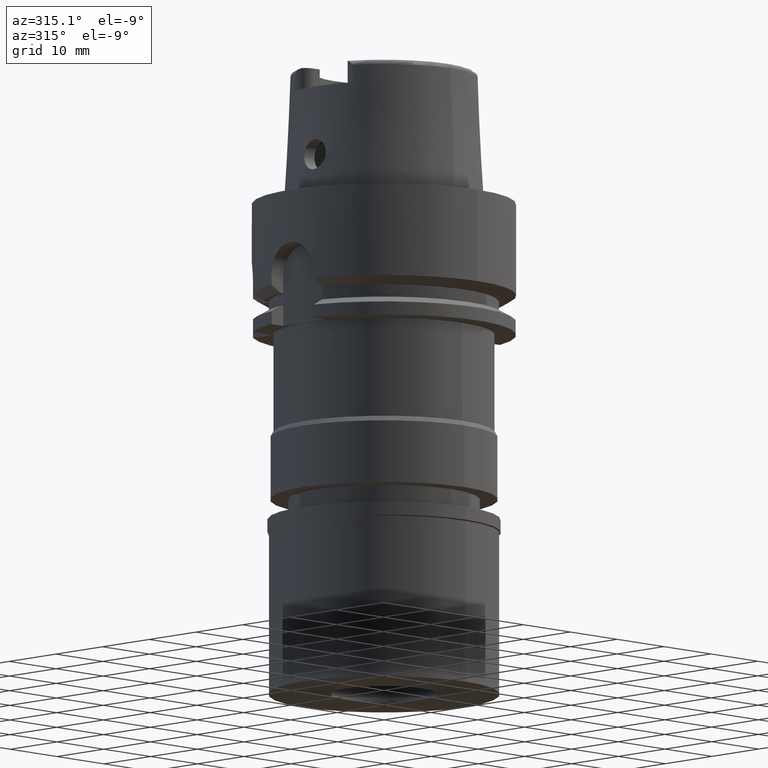
[diagram: clean part render]
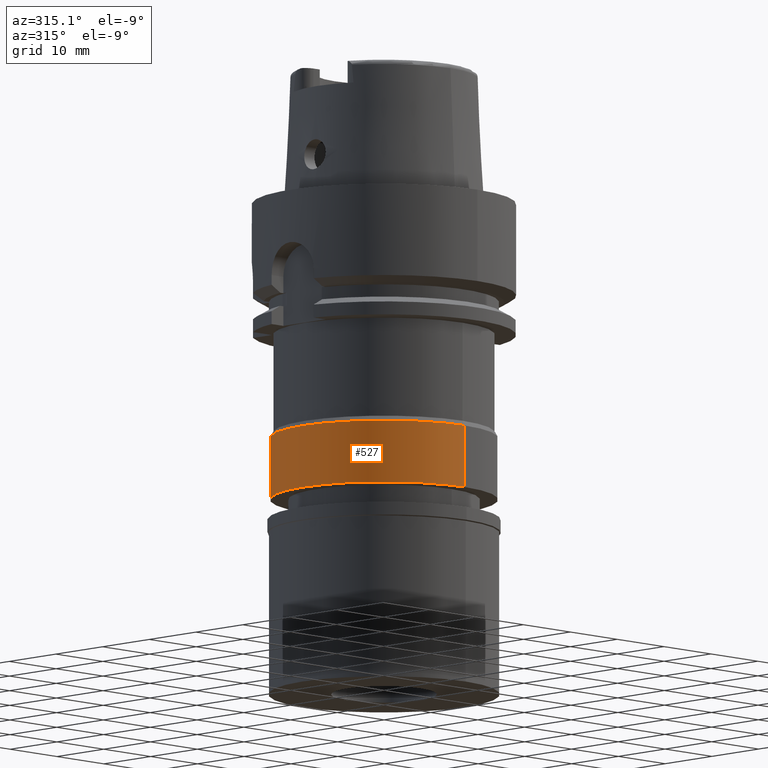
[diagram: same view with one face highlighted and labeled with its STEP entity id]
A machine part, auxiliary view. The second image highlights one B-rep face of the part: STEP entity #527.
In plain terms, the highlighted cylindrical surface (partial cylindrical patch) has radius 17.25 mm, axis along (0, 0, 1).
Its self-contained STEP definition (entity closure, byte-faithful):
#4 = DIRECTION ( 'NONE',  ( 0.0000000000000000000, 0.0000000000000000000, 1.000000000000000000 ) ) ;
#9 = DIRECTION ( 'NONE',  ( 0.0000000000000000000, 0.0000000000000000000, -1.000000000000000000 ) ) ;
#157 = CARTESIAN_POINT ( 'NONE',  ( 0.0000000000000000000, 0.0000000000000000000, -45.19999999999999574 ) ) ;
#391 = EDGE_CURVE ( 'NONE', #3126, #4249, #534, .T. ) ;
#527 = ADVANCED_FACE ( 'NONE', ( #2132 ), #3362, .T. ) ;
#534 = LINE ( 'NONE', #4801, #4095 ) ;
#1057 = DIRECTION ( 'NONE',  ( 0.0000000000000000000, -1.606542789497000026E-13, -1.000000000000000000 ) ) ;
#1098 = VERTEX_POINT ( 'NONE', #1249 ) ;
#1206 = EDGE_LOOP ( 'NONE', ( #4767, #5396, #1256, #3733 ) ) ;
#1232 = DIRECTION ( 'NONE',  ( 0.0000000000000000000, 1.000000000000000000, 0.0000000000000000000 ) ) ;
#1249 = CARTESIAN_POINT ( 'NONE',  ( 0.0000000000000000000, -17.25000000000000000, -35.77942286340999800 ) ) ;
#1256 = ORIENTED_EDGE ( 'NONE', *, *, #1972, .T. ) ;
#1559 = DIRECTION ( 'NONE',  ( 0.0000000000000000000, 1.606542789497000026E-13, -1.000000000000000000 ) ) ;
#1614 = DIRECTION ( 'NONE',  ( 0.0000000000000000000, -1.000000000000000000, 0.0000000000000000000 ) ) ;
#1927 = AXIS2_PLACEMENT_3D ( 'NONE', #157, #4005, #2224 ) ;
#1972 = EDGE_CURVE ( 'NONE', #1098, #3126, #4074, .T. ) ;
#2132 = FACE_OUTER_BOUND ( 'NONE', #1206, .T. ) ;
#2224 = DIRECTION ( 'NONE',  ( 0.0000000000000000000, 1.000000000000000000, 0.0000000000000000000 ) ) ;
#3126 = VERTEX_POINT ( 'NONE', #3256 ) ;
#3251 = CARTESIAN_POINT ( 'NONE',  ( 0.0000000000000000000, -17.25000000000000000, -45.19999999999999574 ) ) ;
#3256 = CARTESIAN_POINT ( 'NONE',  ( 0.0000000000000000000, 17.25000000000000000, -35.77942286340999800 ) ) ;
#3299 = VECTOR ( 'NONE', #1559, 1000.000000000000000 ) ;
#3338 = CARTESIAN_POINT ( 'NONE',  ( 0.0000000000000000000, 0.0000000000000000000, -35.77942286340999800 ) ) ;
#3362 = CYLINDRICAL_SURFACE ( 'NONE', #5165, 17.25000000000000000 ) ;
#3405 = CARTESIAN_POINT ( 'NONE',  ( 0.0000000000000000000, 17.25000000000000000, -45.19999999999999574 ) ) ;
#3733 = ORIENTED_EDGE ( 'NONE', *, *, #391, .T. ) ;
#3742 = EDGE_CURVE ( 'NONE', #1098, #4569, #4889, .T. ) ;
#3747 = CARTESIAN_POINT ( 'NONE',  ( 0.0000000000000000000, 0.0000000000000000000, -68.20000000000000284 ) ) ;
#4005 = DIRECTION ( 'NONE',  ( 0.0000000000000000000, 0.0000000000000000000, 1.000000000000000000 ) ) ;
#4074 = CIRCLE ( 'NONE', #4785, 17.25000000000000000 ) ;
#4095 = VECTOR ( 'NONE', #1057, 1000.000000000000000 ) ;
#4193 = CIRCLE ( 'NONE', #1927, 17.25000000000000000 ) ;
#4249 = VERTEX_POINT ( 'NONE', #3405 ) ;
#4450 = EDGE_CURVE ( 'NONE', #4249, #4569, #4193, .T. ) ;
#4456 = CARTESIAN_POINT ( 'NONE',  ( 0.0000000000000000000, -17.25000000000000000, -35.77942286340999800 ) ) ;
#4569 = VERTEX_POINT ( 'NONE', #3251 ) ;
#4767 = ORIENTED_EDGE ( 'NONE', *, *, #4450, .T. ) ;
#4785 = AXIS2_PLACEMENT_3D ( 'NONE', #3338, #9, #1614 ) ;
#4801 = CARTESIAN_POINT ( 'NONE',  ( 0.0000000000000000000, 17.25000000000000000, -35.77942286340999800 ) ) ;
#4889 = LINE ( 'NONE', #4456, #3299 ) ;
#5165 = AXIS2_PLACEMENT_3D ( 'NONE', #3747, #4, #1232 ) ;
#5396 = ORIENTED_EDGE ( 'NONE', *, *, #3742, .F. ) ;